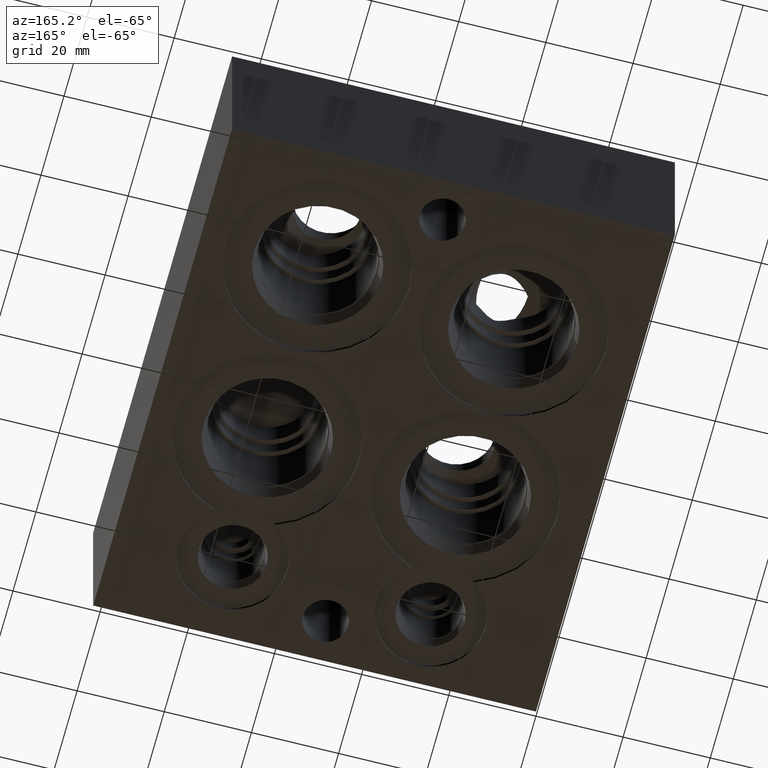
[diagram: clean part render]
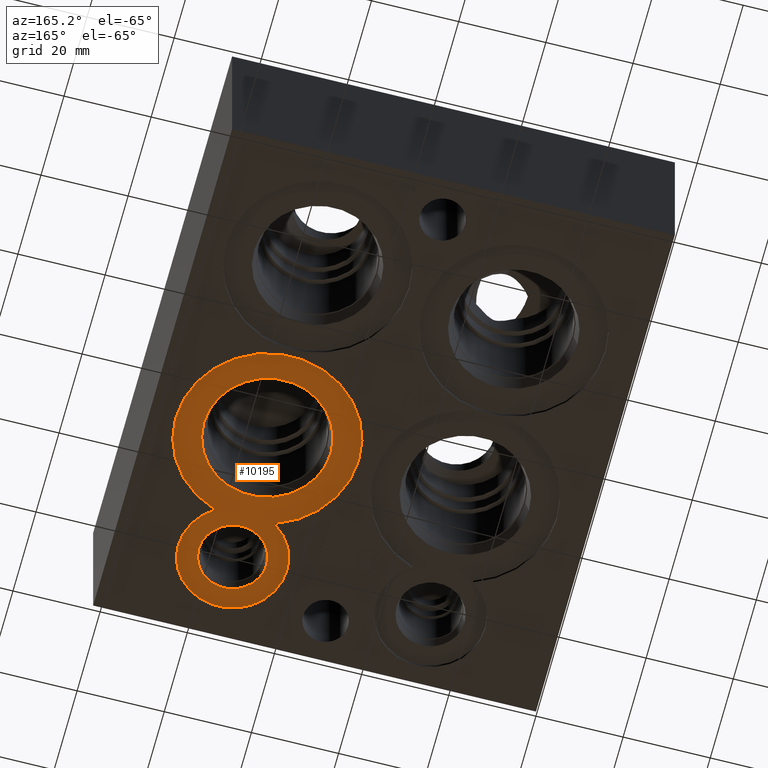
[diagram: same view with one face highlighted and labeled with its STEP entity id]
A machine part, auxiliary view. The second image highlights one B-rep face of the part: STEP entity #10195.
In plain terms, the highlighted planar face has unit normal (0, 0, 1).
Its self-contained STEP definition (entity closure, byte-faithful):
#287=CIRCLE('',#10678,21.0185);
#288=CIRCLE('',#10680,14.5923);
#289=CIRCLE('',#10681,14.5923);
#294=CIRCLE('',#10689,12.5095);
#295=CIRCLE('',#10690,7.79780000000001);
#296=CIRCLE('',#10691,7.79780000000001);
#708=FACE_BOUND('',#1753,.T.);
#709=FACE_BOUND('',#1754,.T.);
#1181=FACE_OUTER_BOUND('',#1752,.T.);
#1752=EDGE_LOOP('',(#8622,#8623));
#1753=EDGE_LOOP('',(#8624,#8625));
#1754=EDGE_LOOP('',(#8626,#8627));
#4643=VERTEX_POINT('',#17186);
#4644=VERTEX_POINT('',#17188);
#4645=VERTEX_POINT('',#17192);
#4646=VERTEX_POINT('',#17193);
#4651=VERTEX_POINT('',#17211);
#4652=VERTEX_POINT('',#17212);
#6009=EDGE_CURVE('',#4644,#4643,#287,.T.);
#6010=EDGE_CURVE('',#4645,#4646,#288,.T.);
#6011=EDGE_CURVE('',#4646,#4645,#289,.T.);
#6019=EDGE_CURVE('',#4643,#4644,#294,.T.);
#6020=EDGE_CURVE('',#4651,#4652,#295,.T.);
#6021=EDGE_CURVE('',#4652,#4651,#296,.T.);
#8622=ORIENTED_EDGE('',*,*,#6019,.F.);
#8623=ORIENTED_EDGE('',*,*,#6009,.F.);
#8624=ORIENTED_EDGE('',*,*,#6010,.T.);
#8625=ORIENTED_EDGE('',*,*,#6011,.T.);
#8626=ORIENTED_EDGE('',*,*,#6020,.T.);
#8627=ORIENTED_EDGE('',*,*,#6021,.T.);
#9338=PLANE('',#10688);
#10195=ADVANCED_FACE('',(#1181,#708,#709),#9338,.F.);
#10678=AXIS2_PLACEMENT_3D('',#17190,#12579,#12580);
#10680=AXIS2_PLACEMENT_3D('',#17194,#12583,#12584);
#10681=AXIS2_PLACEMENT_3D('',#17195,#12585,#12586);
#10688=AXIS2_PLACEMENT_3D('',#17209,#12602,#12603);
#10689=AXIS2_PLACEMENT_3D('',#17210,#12604,#12605);
#10690=AXIS2_PLACEMENT_3D('',#17213,#12606,#12607);
#10691=AXIS2_PLACEMENT_3D('',#17214,#12608,#12609);
#12579=DIRECTION('center_axis',(0.,0.,1.));
#12580=DIRECTION('ref_axis',(1.,0.,0.));
#12583=DIRECTION('center_axis',(0.,0.,1.));
#12584=DIRECTION('ref_axis',(1.,0.,0.));
#12585=DIRECTION('center_axis',(0.,0.,1.));
#12586=DIRECTION('ref_axis',(1.,0.,0.));
#12602=DIRECTION('center_axis',(0.,0.,1.));
#12603=DIRECTION('ref_axis',(1.,0.,0.));
#12604=DIRECTION('center_axis',(0.,0.,1.));
#12605=DIRECTION('ref_axis',(1.,0.,0.));
#12606=DIRECTION('center_axis',(0.,0.,1.));
#12607=DIRECTION('ref_axis',(1.,0.,0.));
#12608=DIRECTION('center_axis',(0.,0.,1.));
#12609=DIRECTION('ref_axis',(1.,0.,0.));
#17186=CARTESIAN_POINT('',(67.589892035277,29.3936952822241,0.7874));
#17188=CARTESIAN_POINT('',(81.660507964723,29.3936952822241,0.7874));
#17190=CARTESIAN_POINT('Origin',(74.6252,49.1998,0.7874));
#17192=CARTESIAN_POINT('',(89.2175,49.1998,0.7874));
#17193=CARTESIAN_POINT('',(60.0329,49.1998,0.7874));
#17194=CARTESIAN_POINT('Origin',(74.6252,49.1998,0.7874));
#17195=CARTESIAN_POINT('Origin',(74.6252,49.1998,0.7874));
#17209=CARTESIAN_POINT('Origin',(82.423,19.05,0.7874));
#17210=CARTESIAN_POINT('Origin',(74.6252,19.05,0.7874));
#17211=CARTESIAN_POINT('',(82.423,19.05,0.7874));
#17212=CARTESIAN_POINT('',(66.8274,19.05,0.787399999999998));
#17213=CARTESIAN_POINT('Origin',(74.6252,19.05,0.7874));
#17214=CARTESIAN_POINT('Origin',(74.6252,19.05,0.7874));